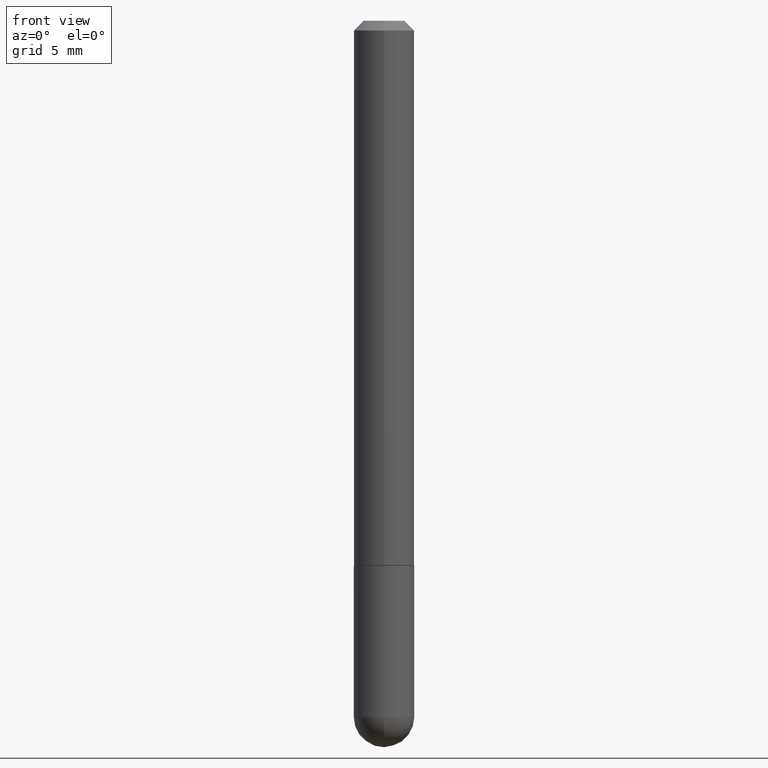
[diagram: clean part render]
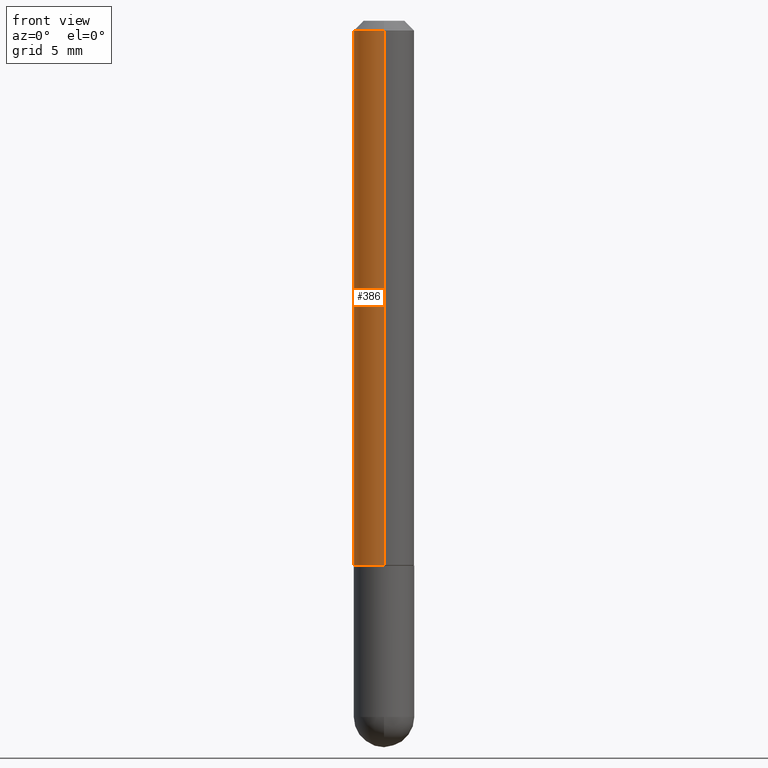
[diagram: same view with one face highlighted and labeled with its STEP entity id]
A machine part, front view. The second image highlights one B-rep face of the part: STEP entity #386.
In plain terms, the highlighted cylindrical surface (edge-blend (fillet) strip) has radius 1.5875 mm, axis along (-0, 0, 1).
Its self-contained STEP definition (entity closure, byte-faithful):
#2 = EDGE_LOOP ( 'NONE', ( #132, #406, #73, #159 ) ) ;
#26 = LINE ( 'NONE', #352, #90 ) ;
#32 = AXIS2_PLACEMENT_3D ( 'NONE', #83, #61, #191 ) ;
#36 = VERTEX_POINT ( 'NONE', #236 ) ;
#55 = DIRECTION ( 'NONE',  ( -2.424521167318213835E-29, 3.521479549966140772E-15, 1.000000000000000000 ) ) ;
#58 = DIRECTION ( 'NONE',  ( -2.424521167318213835E-29, 3.521479549966140772E-15, 1.000000000000000000 ) ) ;
#61 = DIRECTION ( 'NONE',  ( -2.424521167318213835E-29, 3.521479549966140772E-15, 1.000000000000000000 ) ) ;
#73 = ORIENTED_EDGE ( 'NONE', *, *, #328, .T. ) ;
#83 = CARTESIAN_POINT ( 'NONE',  ( 4.849042334636444380E-31, -7.042959099932305852E-17, -0.02000000000000006981 ) ) ;
#90 = VECTOR ( 'NONE', #156, 39.37007874015748143 ) ;
#132 = ORIENTED_EDGE ( 'NONE', *, *, #186, .F. ) ;
#141 = CARTESIAN_POINT ( 'NONE',  ( 4.440892098500628134E-16, 0.06250000000000002776, -2.200924718728839215E-16 ) ) ;
#149 = CARTESIAN_POINT ( 'NONE',  ( 4.440892098500770129E-16, 0.06249999999999615585, -1.124000000000000332 ) ) ;
#152 = CARTESIAN_POINT ( 'NONE',  ( -4.364351673553652426E-16, -0.06250000000000408007, -1.123999999999999888 ) ) ;
#154 = DIRECTION ( 'NONE',  ( -6.982962677686266711E-15, -1.000000000000000000, 3.521479549966141167E-15 ) ) ;
#156 = DIRECTION ( 'NONE',  ( -2.424521167318214115E-29, 3.521479549966140772E-15, 1.000000000000000000 ) ) ;
#159 = ORIENTED_EDGE ( 'NONE', *, *, #260, .F. ) ;
#182 = CYLINDRICAL_SURFACE ( 'NONE', #263, 0.06250000000000002776 ) ;
#186 = EDGE_CURVE ( 'NONE', #390, #327, #279, .T. ) ;
#191 = DIRECTION ( 'NONE',  ( -6.982962677686265922E-15, -1.000000000000000000, 3.551402391763545142E-15 ) ) ;
#208 = CIRCLE ( 'NONE', #318, 0.06250000000000012490 ) ;
#236 = CARTESIAN_POINT ( 'NONE',  ( -4.287811248607198352E-16, -0.06250000000000001388, -0.01999999999999984776 ) ) ;
#253 = VERTEX_POINT ( 'NONE', #152 ) ;
#260 = EDGE_CURVE ( 'NONE', #327, #36, #275, .T. ) ;
#263 = AXIS2_PLACEMENT_3D ( 'NONE', #310, #58, #154 ) ;
#275 = CIRCLE ( 'NONE', #32, 0.06249999999999995143 ) ;
#279 = LINE ( 'NONE', #141, #300 ) ;
#300 = VECTOR ( 'NONE', #396, 39.37007874015748143 ) ;
#310 = CARTESIAN_POINT ( 'NONE',  ( 0.000000000000000000, 0.000000000000000000, 0.000000000000000000 ) ) ;
#313 = DIRECTION ( 'NONE',  ( -6.982962677686265133E-15, -1.000000000000000000, 4.370956789862812472E-15 ) ) ;
#318 = AXIS2_PLACEMENT_3D ( 'NONE', #343, #55, #313 ) ;
#327 = VERTEX_POINT ( 'NONE', #356 ) ;
#328 = EDGE_CURVE ( 'NONE', #253, #36, #26, .T. ) ;
#343 = CARTESIAN_POINT ( 'NONE',  ( 2.725161792065672302E-29, -3.958143014161942091E-15, -1.124000000000000110 ) ) ;
#349 = FACE_OUTER_BOUND ( 'NONE', #2, .T. ) ;
#352 = CARTESIAN_POINT ( 'NONE',  ( -4.364351673553918666E-16, -0.06250000000000002776, 2.200924718728839215E-16 ) ) ;
#356 = CARTESIAN_POINT ( 'NONE',  ( 4.364351673553917187E-16, 0.06249999999999988204, -0.02000000000000029185 ) ) ;
#377 = EDGE_CURVE ( 'NONE', #390, #253, #208, .T. ) ;
#386 = ADVANCED_FACE ( 'NONE', ( #349 ), #182, .T. ) ;
#390 = VERTEX_POINT ( 'NONE', #149 ) ;
#396 = DIRECTION ( 'NONE',  ( -2.424521167318214115E-29, 3.521479549966140772E-15, 1.000000000000000000 ) ) ;
#406 = ORIENTED_EDGE ( 'NONE', *, *, #377, .T. ) ;